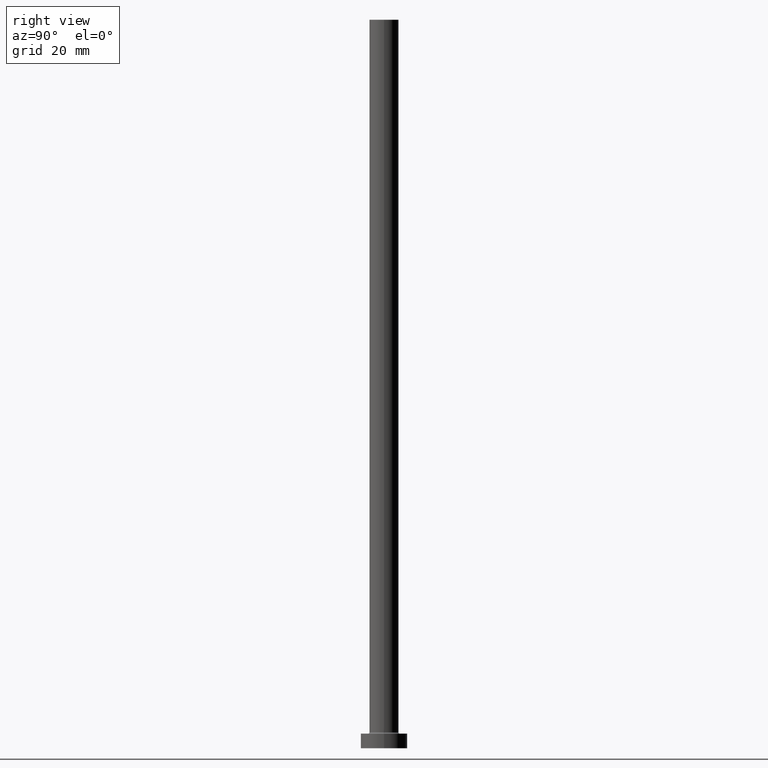
[diagram: clean part render]
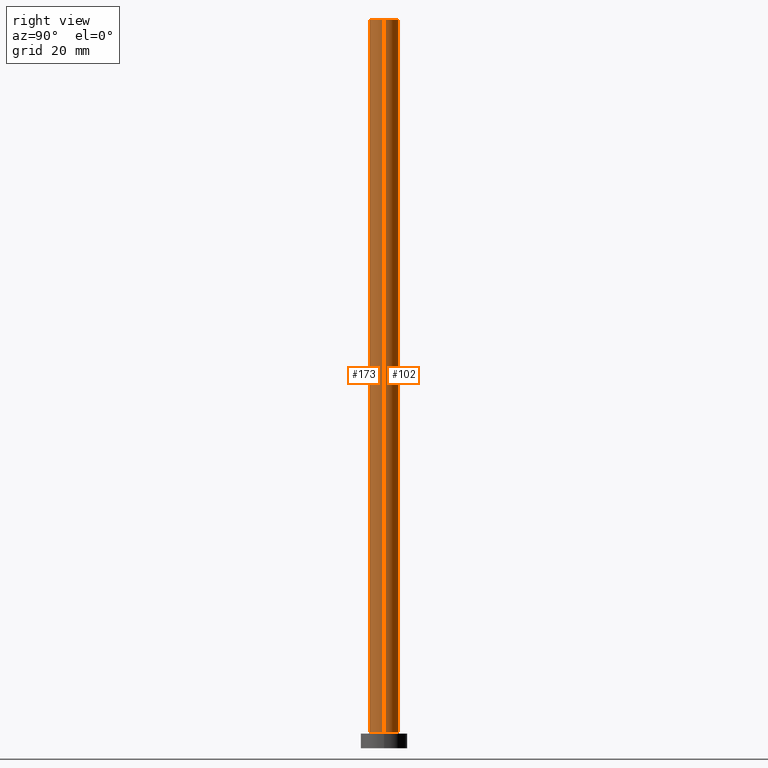
[diagram: same view with one multi-face feature highlighted, each face labeled with its STEP entity id]
A machine part, right view. The highlighted faces form ONE feature: a constant-radius fillet chain: 2 tangent blend faces with common blend radius 5 mm. The faces share edges in the B-rep.
Their STEP definitions:
[1] entity #173 (Cylinder):
#1 = CIRCLE ( 'NONE', #262, 5.000000000000000000 ) ;
#8 = CARTESIAN_POINT ( 'NONE',  ( -5.000000000000000000, 0.000000000000000000, 250.0000000000000000 ) ) ;
#11 = LINE ( 'NONE', #120, #310 ) ;
#12 = ORIENTED_EDGE ( 'NONE', *, *, #94, .T. ) ;
#20 = DIRECTION ( 'NONE',  ( -0.000000000000000000, -0.000000000000000000, -1.000000000000000000 ) ) ;
#36 = CARTESIAN_POINT ( 'NONE',  ( 0.000000000000000000, 0.000000000000000000, 5.500000000000005329 ) ) ;
#38 = VERTEX_POINT ( 'NONE', #176 ) ;
#44 = EDGE_CURVE ( 'NONE', #267, #55, #255, .T. ) ;
#55 = VERTEX_POINT ( 'NONE', #388 ) ;
#72 = DIRECTION ( 'NONE',  ( 0.000000000000000000, 0.000000000000000000, 1.000000000000000000 ) ) ;
#79 = FACE_OUTER_BOUND ( 'NONE', #118, .T. ) ;
#81 = DIRECTION ( 'NONE',  ( -0.000000000000000000, -0.000000000000000000, -1.000000000000000000 ) ) ;
#94 = EDGE_CURVE ( 'NONE', #372, #38, #1, .T. ) ;
#118 = EDGE_LOOP ( 'NONE', ( #284, #127, #405, #12 ) ) ;
#120 = CARTESIAN_POINT ( 'NONE',  ( 5.000000000000000000, 6.123233995736766282E-16, 250.0000000000000000 ) ) ;
#127 = ORIENTED_EDGE ( 'NONE', *, *, #44, .F. ) ;
#151 = CARTESIAN_POINT ( 'NONE',  ( 0.000000000000000000, 0.000000000000000000, 250.0000000000000000 ) ) ;
#153 = DIRECTION ( 'NONE',  ( -0.000000000000000000, -0.000000000000000000, -1.000000000000000000 ) ) ;
#173 = ADVANCED_FACE ( 'NONE', ( #79 ), #218, .T. ) ;
#176 = CARTESIAN_POINT ( 'NONE',  ( 5.000000000000000000, 6.123233995736766282E-16, 5.500000000000005329 ) ) ;
#210 = CARTESIAN_POINT ( 'NONE',  ( 0.000000000000000000, 0.000000000000000000, 250.0000000000000000 ) ) ;
#218 = CYLINDRICAL_SURFACE ( 'NONE', #436, 5.000000000000000000 ) ;
#244 = EDGE_CURVE ( 'NONE', #267, #372, #437, .T. ) ;
#249 = DIRECTION ( 'NONE',  ( 0.000000000000000000, 0.000000000000000000, 1.000000000000000000 ) ) ;
#251 = CARTESIAN_POINT ( 'NONE',  ( -5.000000000000000000, 0.000000000000000000, 250.0000000000000000 ) ) ;
#255 = CIRCLE ( 'NONE', #434, 5.000000000000000000 ) ;
#262 = AXIS2_PLACEMENT_3D ( 'NONE', #36, #72, #414 ) ;
#267 = VERTEX_POINT ( 'NONE', #8 ) ;
#276 = DIRECTION ( 'NONE',  ( 1.000000000000000000, 0.000000000000000000, 0.000000000000000000 ) ) ;
#284 = ORIENTED_EDGE ( 'NONE', *, *, #369, .F. ) ;
#310 = VECTOR ( 'NONE', #20, 1000.000000000000000 ) ;
#349 = VECTOR ( 'NONE', #81, 1000.000000000000000 ) ;
#369 = EDGE_CURVE ( 'NONE', #55, #38, #11, .T. ) ;
#372 = VERTEX_POINT ( 'NONE', #440 ) ;
#388 = CARTESIAN_POINT ( 'NONE',  ( 5.000000000000000000, 6.123233995736766282E-16, 250.0000000000000000 ) ) ;
#405 = ORIENTED_EDGE ( 'NONE', *, *, #244, .T. ) ;
#414 = DIRECTION ( 'NONE',  ( 1.000000000000000000, 0.000000000000000000, 0.000000000000000000 ) ) ;
#434 = AXIS2_PLACEMENT_3D ( 'NONE', #210, #249, #276 ) ;
#435 = DIRECTION ( 'NONE',  ( -1.000000000000000000, 0.000000000000000000, 0.000000000000000000 ) ) ;
#436 = AXIS2_PLACEMENT_3D ( 'NONE', #151, #153, #435 ) ;
#437 = LINE ( 'NONE', #251, #349 ) ;
#440 = CARTESIAN_POINT ( 'NONE',  ( -5.000000000000000000, 0.000000000000000000, 5.500000000000005329 ) ) ;
[2] entity #102 (Cylinder):
#8 = CARTESIAN_POINT ( 'NONE',  ( -5.000000000000000000, 0.000000000000000000, 250.0000000000000000 ) ) ;
#11 = LINE ( 'NONE', #120, #310 ) ;
#20 = DIRECTION ( 'NONE',  ( -0.000000000000000000, -0.000000000000000000, -1.000000000000000000 ) ) ;
#26 = DIRECTION ( 'NONE',  ( 1.000000000000000000, 0.000000000000000000, 0.000000000000000000 ) ) ;
#32 = EDGE_CURVE ( 'NONE', #55, #267, #106, .T. ) ;
#34 = DIRECTION ( 'NONE',  ( -0.000000000000000000, -0.000000000000000000, -1.000000000000000000 ) ) ;
#38 = VERTEX_POINT ( 'NONE', #176 ) ;
#55 = VERTEX_POINT ( 'NONE', #388 ) ;
#62 = DIRECTION ( 'NONE',  ( 1.000000000000000000, 0.000000000000000000, 0.000000000000000000 ) ) ;
#68 = AXIS2_PLACEMENT_3D ( 'NONE', #239, #34, #246 ) ;
#69 = DIRECTION ( 'NONE',  ( 0.000000000000000000, 0.000000000000000000, 1.000000000000000000 ) ) ;
#78 = EDGE_CURVE ( 'NONE', #38, #372, #293, .T. ) ;
#81 = DIRECTION ( 'NONE',  ( -0.000000000000000000, -0.000000000000000000, -1.000000000000000000 ) ) ;
#82 = AXIS2_PLACEMENT_3D ( 'NONE', #212, #69, #26 ) ;
#98 = CYLINDRICAL_SURFACE ( 'NONE', #68, 5.000000000000000000 ) ;
#102 = ADVANCED_FACE ( 'NONE', ( #214 ), #98, .T. ) ;
#106 = CIRCLE ( 'NONE', #198, 5.000000000000000000 ) ;
#120 = CARTESIAN_POINT ( 'NONE',  ( 5.000000000000000000, 6.123233995736766282E-16, 250.0000000000000000 ) ) ;
#122 = ORIENTED_EDGE ( 'NONE', *, *, #369, .T. ) ;
#176 = CARTESIAN_POINT ( 'NONE',  ( 5.000000000000000000, 6.123233995736766282E-16, 5.500000000000005329 ) ) ;
#198 = AXIS2_PLACEMENT_3D ( 'NONE', #322, #215, #62 ) ;
#212 = CARTESIAN_POINT ( 'NONE',  ( 0.000000000000000000, 0.000000000000000000, 5.500000000000005329 ) ) ;
#214 = FACE_OUTER_BOUND ( 'NONE', #287, .T. ) ;
#215 = DIRECTION ( 'NONE',  ( 0.000000000000000000, 0.000000000000000000, 1.000000000000000000 ) ) ;
#239 = CARTESIAN_POINT ( 'NONE',  ( 0.000000000000000000, 0.000000000000000000, 250.0000000000000000 ) ) ;
#244 = EDGE_CURVE ( 'NONE', #267, #372, #437, .T. ) ;
#246 = DIRECTION ( 'NONE',  ( -1.000000000000000000, 0.000000000000000000, 0.000000000000000000 ) ) ;
#251 = CARTESIAN_POINT ( 'NONE',  ( -5.000000000000000000, 0.000000000000000000, 250.0000000000000000 ) ) ;
#260 = ORIENTED_EDGE ( 'NONE', *, *, #244, .F. ) ;
#267 = VERTEX_POINT ( 'NONE', #8 ) ;
#287 = EDGE_LOOP ( 'NONE', ( #333, #122, #411, #260 ) ) ;
#293 = CIRCLE ( 'NONE', #82, 5.000000000000000000 ) ;
#310 = VECTOR ( 'NONE', #20, 1000.000000000000000 ) ;
#322 = CARTESIAN_POINT ( 'NONE',  ( 0.000000000000000000, 0.000000000000000000, 250.0000000000000000 ) ) ;
#333 = ORIENTED_EDGE ( 'NONE', *, *, #32, .F. ) ;
#349 = VECTOR ( 'NONE', #81, 1000.000000000000000 ) ;
#369 = EDGE_CURVE ( 'NONE', #55, #38, #11, .T. ) ;
#372 = VERTEX_POINT ( 'NONE', #440 ) ;
#388 = CARTESIAN_POINT ( 'NONE',  ( 5.000000000000000000, 6.123233995736766282E-16, 250.0000000000000000 ) ) ;
#411 = ORIENTED_EDGE ( 'NONE', *, *, #78, .T. ) ;
#437 = LINE ( 'NONE', #251, #349 ) ;
#440 = CARTESIAN_POINT ( 'NONE',  ( -5.000000000000000000, 0.000000000000000000, 5.500000000000005329 ) ) ;